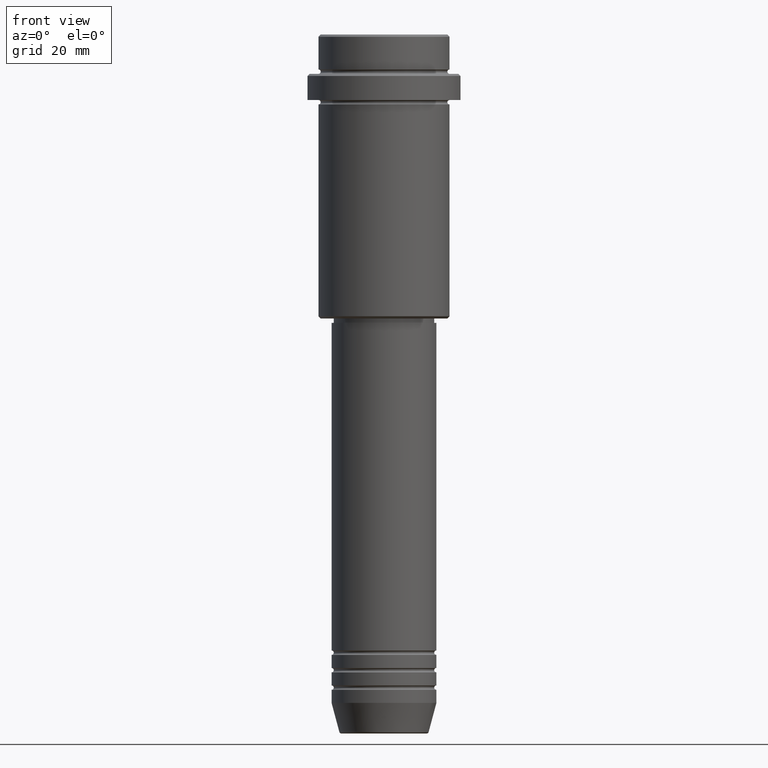
[diagram: clean part render]
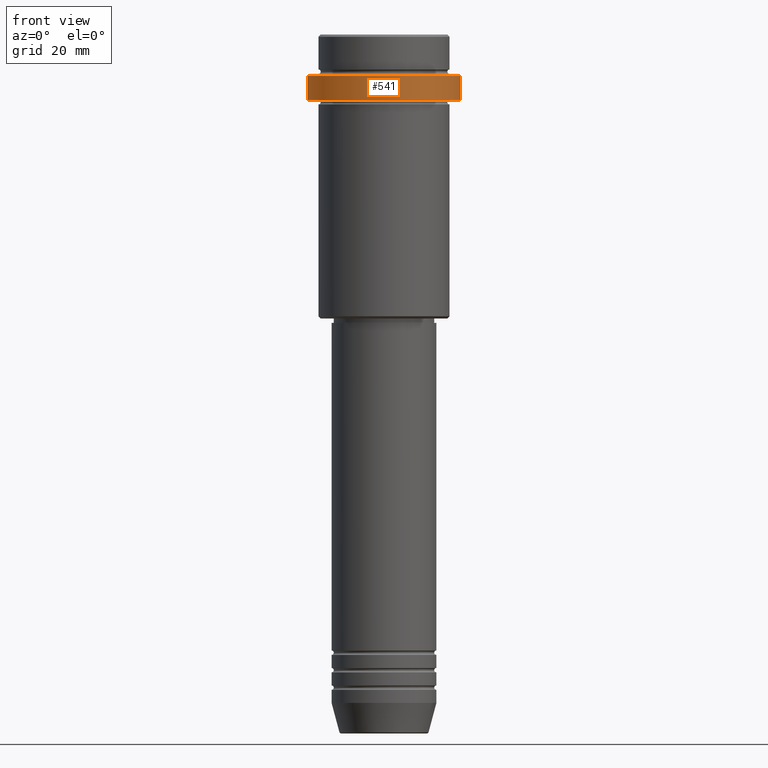
[diagram: same view with one face highlighted and labeled with its STEP entity id]
A machine part, front view. The second image highlights one B-rep face of the part: STEP entity #541.
In plain terms, the highlighted cylindrical surface (partial cylindrical patch) has radius 17.5 mm, axis along (-0, -0, 1).
Its self-contained STEP definition (entity closure, byte-faithful):
#100 = VERTEX_POINT ( 'NONE', #326 ) ;
#123 = DIRECTION ( 'NONE',  ( 1.000000000000000000, 0.000000000000000000, 0.000000000000000000 ) ) ;
#129 = CARTESIAN_POINT ( 'NONE',  ( 0.000000000000000000, 0.000000000000000000, -9.500000000000000000 ) ) ;
#134 = AXIS2_PLACEMENT_3D ( 'NONE', #1322, #135, #993 ) ;
#135 = DIRECTION ( 'NONE',  ( -0.000000000000000000, -0.000000000000000000, 1.000000000000000000 ) ) ;
#171 = CARTESIAN_POINT ( 'NONE',  ( -17.50000000000000000, 2.143131898507868248E-15, 0.000000000000000000 ) ) ;
#187 = CARTESIAN_POINT ( 'NONE',  ( -17.50000000000000000, 2.143131898507868248E-15, -9.500000000000000000 ) ) ;
#225 = EDGE_CURVE ( 'NONE', #100, #1353, #1198, .T. ) ;
#239 = AXIS2_PLACEMENT_3D ( 'NONE', #129, #576, #123 ) ;
#321 = CARTESIAN_POINT ( 'NONE',  ( 17.50000000000000000, 0.000000000000000000, 0.000000000000000000 ) ) ;
#326 = CARTESIAN_POINT ( 'NONE',  ( -17.50000000000000000, 2.143131898507868248E-15, -15.00000000000000000 ) ) ;
#339 = CARTESIAN_POINT ( 'NONE',  ( 17.50000000000000000, 0.000000000000000000, -9.500000000000000000 ) ) ;
#432 = DIRECTION ( 'NONE',  ( -0.000000000000000000, -0.000000000000000000, 1.000000000000000000 ) ) ;
#473 = ORIENTED_EDGE ( 'NONE', *, *, #862, .T. ) ;
#519 = CARTESIAN_POINT ( 'NONE',  ( 17.50000000000000000, 0.000000000000000000, -15.00000000000000000 ) ) ;
#535 = LINE ( 'NONE', #321, #1138 ) ;
#541 = ADVANCED_FACE ( 'NONE', ( #997 ), #893, .T. ) ;
#576 = DIRECTION ( 'NONE',  ( 0.000000000000000000, 0.000000000000000000, -1.000000000000000000 ) ) ;
#579 = VECTOR ( 'NONE', #1239, 1000.000000000000000 ) ;
#591 = AXIS2_PLACEMENT_3D ( 'NONE', #634, #432, #968 ) ;
#634 = CARTESIAN_POINT ( 'NONE',  ( 0.000000000000000000, 0.000000000000000000, -15.00000000000000000 ) ) ;
#710 = LINE ( 'NONE', #171, #579 ) ;
#746 = DIRECTION ( 'NONE',  ( -0.000000000000000000, -0.000000000000000000, 1.000000000000000000 ) ) ;
#847 = ORIENTED_EDGE ( 'NONE', *, *, #1065, .T. ) ;
#862 = EDGE_CURVE ( 'NONE', #1353, #988, #535, .T. ) ;
#893 = CYLINDRICAL_SURFACE ( 'NONE', #134, 17.50000000000000000 ) ;
#940 = CIRCLE ( 'NONE', #239, 17.50000000000000000 ) ;
#957 = ORIENTED_EDGE ( 'NONE', *, *, #1142, .F. ) ;
#968 = DIRECTION ( 'NONE',  ( 1.000000000000000000, 0.000000000000000000, 0.000000000000000000 ) ) ;
#988 = VERTEX_POINT ( 'NONE', #339 ) ;
#993 = DIRECTION ( 'NONE',  ( 1.000000000000000000, 0.000000000000000000, 0.000000000000000000 ) ) ;
#997 = FACE_OUTER_BOUND ( 'NONE', #1008, .T. ) ;
#1008 = EDGE_LOOP ( 'NONE', ( #957, #1019, #473, #847 ) ) ;
#1019 = ORIENTED_EDGE ( 'NONE', *, *, #225, .T. ) ;
#1065 = EDGE_CURVE ( 'NONE', #988, #1399, #940, .T. ) ;
#1138 = VECTOR ( 'NONE', #746, 1000.000000000000000 ) ;
#1142 = EDGE_CURVE ( 'NONE', #100, #1399, #710, .T. ) ;
#1198 = CIRCLE ( 'NONE', #591, 17.50000000000000000 ) ;
#1239 = DIRECTION ( 'NONE',  ( -0.000000000000000000, -0.000000000000000000, 1.000000000000000000 ) ) ;
#1322 = CARTESIAN_POINT ( 'NONE',  ( 0.000000000000000000, 0.000000000000000000, 0.000000000000000000 ) ) ;
#1353 = VERTEX_POINT ( 'NONE', #519 ) ;
#1399 = VERTEX_POINT ( 'NONE', #187 ) ;